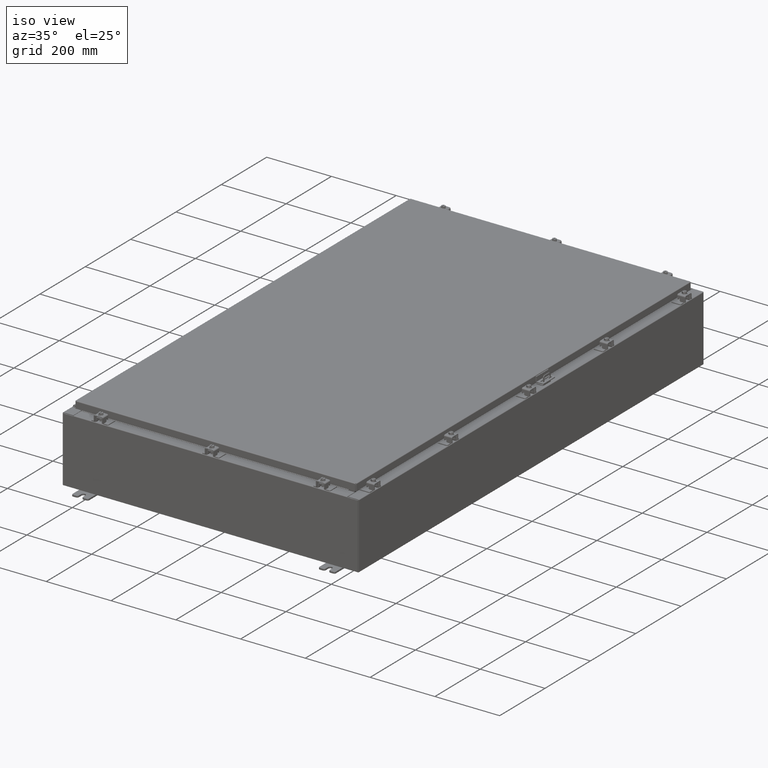
[diagram: clean part render]
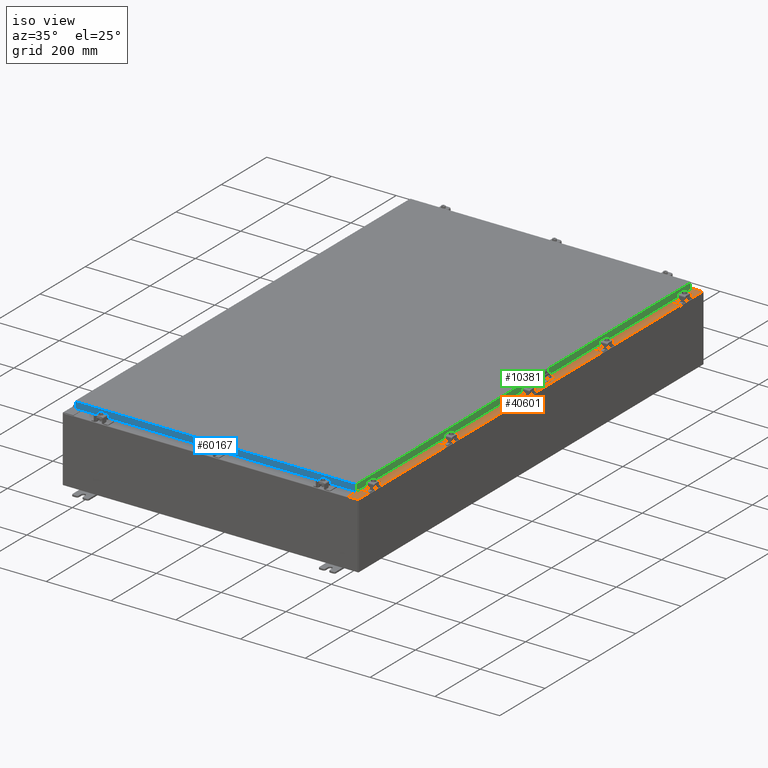
[diagram: same view with three faces highlighted in distinct colors, each labeled with its STEP entity id]
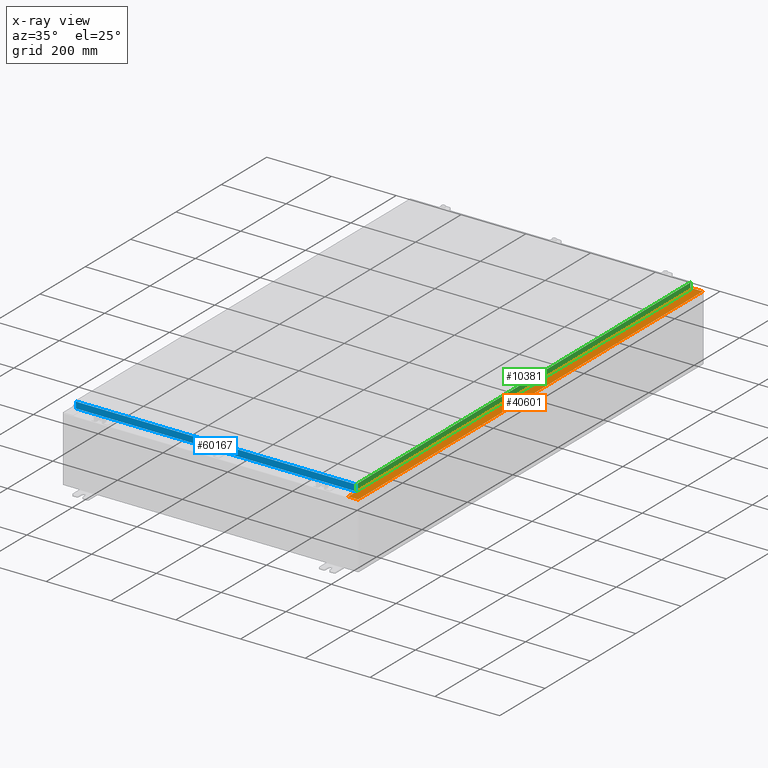
[diagram: x-ray of the same camera — body ghosted, the three highlighted faces saturated]
A machine part, iso view with three faces highlighted in distinct colors.
The next image is the same camera in x-ray (body ghosted, the three faces saturated) — at least one of them is partly hidden behind the body in this view.
Their STEP definitions:

[orange] entity #40601 — the highlighted planar face has unit normal (-0, -0, -1).
#8 = DIRECTION ( 'NONE',  ( 1.000000000000000000, 0.0000000000000000000, 0.0000000000000000000 ) ) ;
#205 = CIRCLE ( 'NONE', #45471, 0.01867499999999949400 ) ;
#698 = CARTESIAN_POINT ( 'NONE',  ( 16.71270000000003000, 28.59374999999999600, 7.925300000000008900 ) ) ;
#1022 = ORIENTED_EDGE ( 'NONE', *, *, #60252, .T. ) ;
#1280 = DIRECTION ( 'NONE',  ( 1.000000000000000000, 0.0000000000000000000, 0.0000000000000000000 ) ) ;
#2045 = FACE_OUTER_BOUND ( 'NONE', #28287, .T. ) ;
#2273 = VERTEX_POINT ( 'NONE', #31888 ) ;
#2908 = VERTEX_POINT ( 'NONE', #17089 ) ;
#3554 = VERTEX_POINT ( 'NONE', #7824 ) ;
#3846 = PLANE ( 'NONE',  #61789 ) ;
#4024 = LINE ( 'NONE', #21381, #42171 ) ;
#4918 = ORIENTED_EDGE ( 'NONE', *, *, #28018, .F. ) ;
#5058 = ORIENTED_EDGE ( 'NONE', *, *, #31599, .F. ) ;
#5275 = LINE ( 'NONE', #698, #33345 ) ;
#5553 = VECTOR ( 'NONE', #43955, 39.37007874015748100 ) ;
#7381 = DIRECTION ( 'NONE',  ( 0.0000000000000000000, -1.000000000000000000, 1.825778183452973300E-017 ) ) ;
#7601 = ORIENTED_EDGE ( 'NONE', *, *, #28686, .F. ) ;
#7617 = ORIENTED_EDGE ( 'NONE', *, *, #14953, .F. ) ;
#7824 = CARTESIAN_POINT ( 'NONE',  ( 16.75005000000003000, -28.63110000000000700, 7.925300000000008900 ) ) ;
#8627 = DIRECTION ( 'NONE',  ( -0.0000000000000000000, -1.000000000000000000, 1.825778183452973300E-017 ) ) ;
#8652 = ORIENTED_EDGE ( 'NONE', *, *, #23881, .T. ) ;
#8696 = CARTESIAN_POINT ( 'NONE',  ( 4.972393517345230000E-014, 1.446983984828268000E-016, 7.925300000000111900 ) ) ;
#8702 = VERTEX_POINT ( 'NONE', #49900 ) ;
#9046 = LINE ( 'NONE', #28613, #45546 ) ;
#10423 = CARTESIAN_POINT ( 'NONE',  ( 16.75005000000003000, -28.59375000000001100, 7.925300000000007100 ) ) ;
#10678 = CARTESIAN_POINT ( 'NONE',  ( 4.972393517345230000E-014, 29.92529999999999300, 7.925300000000111900 ) ) ;
#11227 = AXIS2_PLACEMENT_3D ( 'NONE', #60907, #31126, #1280 ) ;
#12529 = ORIENTED_EDGE ( 'NONE', *, *, #41228, .F. ) ;
#13176 = VECTOR ( 'NONE', #50948, 39.37007874015748100 ) ;
#13983 = DIRECTION ( 'NONE',  ( -6.241167087353086200E-015, -1.825778183452973300E-017, -1.000000000000000000 ) ) ;
#14953 = EDGE_CURVE ( 'NONE', #2273, #2908, #50729, .T. ) ;
#17089 = CARTESIAN_POINT ( 'NONE',  ( 16.71270000000003000, 28.59374999999999600, 7.925300000000008900 ) ) ;
#18063 = CARTESIAN_POINT ( 'NONE',  ( 16.69970000000002800, 1.446983984828268000E-016, 7.925300000000008900 ) ) ;
#18194 = EDGE_CURVE ( 'NONE', #42945, #54412, #42658, .T. ) ;
#21247 = CARTESIAN_POINT ( 'NONE',  ( 16.75005000000003000, 28.63109999999999600, 7.925300000000008900 ) ) ;
#21381 = CARTESIAN_POINT ( 'NONE',  ( 16.75005000000003000, -28.59375000000001100, 7.925300000000008900 ) ) ;
#22115 = VERTEX_POINT ( 'NONE', #22225 ) ;
#22117 = VERTEX_POINT ( 'NONE', #61956 ) ;
#22225 = CARTESIAN_POINT ( 'NONE',  ( 16.69970000000002800, 29.92529999999999300, 7.925300000000008900 ) ) ;
#22408 = CIRCLE ( 'NONE', #11227, 0.01867499999999949400 ) ;
#23765 = DIRECTION ( 'NONE',  ( -0.0000000000000000000, 1.000000000000000000, -0.0000000000000000000 ) ) ;
#23881 = EDGE_CURVE ( 'NONE', #22117, #54508, #61455, .T. ) ;
#23935 = ORIENTED_EDGE ( 'NONE', *, *, #18194, .F. ) ;
#25032 = LINE ( 'NONE', #10678, #26577 ) ;
#25068 = ORIENTED_EDGE ( 'NONE', *, *, #30925, .F. ) ;
#25469 = DIRECTION ( 'NONE',  ( -1.000000000000000000, 0.0000000000000000000, 6.241167087353087800E-015 ) ) ;
#26544 = VERTEX_POINT ( 'NONE', #10423 ) ;
#26577 = VECTOR ( 'NONE', #25469, 39.37007874015748100 ) ;
#28007 = DIRECTION ( 'NONE',  ( 0.0000000000000000000, -1.000000000000000000, 1.825778183452973300E-017 ) ) ;
#28018 = EDGE_CURVE ( 'NONE', #2908, #41037, #5275, .T. ) ;
#28287 = EDGE_LOOP ( 'NONE', ( #37211, #8652, #37706, #12529, #1022, #34252, #23935, #7601, #4918, #7617, #5058, #25068 ) ) ;
#28613 = CARTESIAN_POINT ( 'NONE',  ( 17.91230000000002300, -29.92530000000001100, 7.925300000000000900 ) ) ;
#28686 = EDGE_CURVE ( 'NONE', #41037, #42945, #22408, .T. ) ;
#29117 = LINE ( 'NONE', #31935, #42325 ) ;
#29858 = DIRECTION ( 'NONE',  ( 6.241167087353086200E-015, 1.825778183452973300E-017, 1.000000000000000000 ) ) ;
#30552 = DIRECTION ( 'NONE',  ( 1.000000000000000000, 0.0000000000000000000, 0.0000000000000000000 ) ) ;
#30925 = EDGE_CURVE ( 'NONE', #3554, #26544, #205, .T. ) ;
#31126 = DIRECTION ( 'NONE',  ( 6.241167087353086200E-015, 1.825778183452973300E-017, 1.000000000000000000 ) ) ;
#31599 = EDGE_CURVE ( 'NONE', #26544, #2273, #4024, .T. ) ;
#31724 = EDGE_CURVE ( 'NONE', #22115, #54412, #47566, .T. ) ;
#31888 = CARTESIAN_POINT ( 'NONE',  ( 16.71270000000003000, -28.59375000000001100, 7.925300000000008900 ) ) ;
#31935 = CARTESIAN_POINT ( 'NONE',  ( 4.972393517345230000E-014, -29.92530000000001100, 7.925300000000113700 ) ) ;
#33345 = VECTOR ( 'NONE', #30552, 39.37007874015748100 ) ;
#34252 = ORIENTED_EDGE ( 'NONE', *, *, #31724, .T. ) ;
#35001 = VECTOR ( 'NONE', #28007, 39.37007874015748100 ) ;
#36973 = EDGE_CURVE ( 'NONE', #22117, #3554, #58501, .T. ) ;
#37124 = CARTESIAN_POINT ( 'NONE',  ( 16.75005000000003000, 28.59374999999999600, 7.925300000000007100 ) ) ;
#37178 = CARTESIAN_POINT ( 'NONE',  ( 16.69970000000002800, 1.446983984828268000E-016, 7.925300000000008900 ) ) ;
#37211 = ORIENTED_EDGE ( 'NONE', *, *, #36973, .F. ) ;
#37706 = ORIENTED_EDGE ( 'NONE', *, *, #58589, .T. ) ;
#39096 = VECTOR ( 'NONE', #23765, 39.37007874015748100 ) ;
#40601 = ADVANCED_FACE ( 'NONE', ( #2045 ), #3846, .F. ) ;
#41037 = VERTEX_POINT ( 'NONE', #37124 ) ;
#41066 = DIRECTION ( 'NONE',  ( -1.000000000000000000, 0.0000000000000000000, 0.0000000000000000000 ) ) ;
#41228 = EDGE_CURVE ( 'NONE', #8702, #53351, #9046, .T. ) ;
#42171 = VECTOR ( 'NONE', #41066, 39.37007874015748100 ) ;
#42325 = VECTOR ( 'NONE', #46675, 39.37007874015748100 ) ;
#42658 = LINE ( 'NONE', #21247, #13176 ) ;
#42945 = VERTEX_POINT ( 'NONE', #61400 ) ;
#43955 = DIRECTION ( 'NONE',  ( 1.000000000000000000, 0.0000000000000000000, 0.0000000000000000000 ) ) ;
#45471 = AXIS2_PLACEMENT_3D ( 'NONE', #59636, #29858, #8 ) ;
#45546 = VECTOR ( 'NONE', #8627, 39.37007874015748100 ) ;
#46675 = DIRECTION ( 'NONE',  ( 1.000000000000000000, 0.0000000000000000000, -6.241167087353087800E-015 ) ) ;
#47566 = LINE ( 'NONE', #37178, #49145 ) ;
#48654 = DIRECTION ( 'NONE',  ( -1.000000000000000000, 0.0000000000000000000, 6.241167087353086200E-015 ) ) ;
#49145 = VECTOR ( 'NONE', #7381, 39.37007874015748100 ) ;
#49900 = CARTESIAN_POINT ( 'NONE',  ( 17.91230000000002300, 29.92529999999999300, 7.925300000000000000 ) ) ;
#50729 = LINE ( 'NONE', #53473, #39096 ) ;
#50948 = DIRECTION ( 'NONE',  ( -1.000000000000000000, 0.0000000000000000000, 0.0000000000000000000 ) ) ;
#53351 = VERTEX_POINT ( 'NONE', #64321 ) ;
#53473 = CARTESIAN_POINT ( 'NONE',  ( 16.71270000000003000, -28.59375000000001400, 7.925300000000008900 ) ) ;
#53733 = CARTESIAN_POINT ( 'NONE',  ( 16.69970000000002800, -28.63110000000000700, 7.925300000000008900 ) ) ;
#54381 = CARTESIAN_POINT ( 'NONE',  ( 16.69970000000002800, 28.63109999999998900, 7.925300000000008900 ) ) ;
#54412 = VERTEX_POINT ( 'NONE', #54381 ) ;
#54508 = VERTEX_POINT ( 'NONE', #60040 ) ;
#58501 = LINE ( 'NONE', #53733, #5553 ) ;
#58589 = EDGE_CURVE ( 'NONE', #54508, #53351, #29117, .T. ) ;
#59636 = CARTESIAN_POINT ( 'NONE',  ( 16.75005000000003000, -28.61242500000000900, 7.925300000000008900 ) ) ;
#60040 = CARTESIAN_POINT ( 'NONE',  ( 16.69970000000002800, -29.92530000000001100, 7.925300000000009800 ) ) ;
#60252 = EDGE_CURVE ( 'NONE', #8702, #22115, #25032, .T. ) ;
#60907 = CARTESIAN_POINT ( 'NONE',  ( 16.75005000000003000, 28.61242499999999500, 7.925300000000008900 ) ) ;
#61400 = CARTESIAN_POINT ( 'NONE',  ( 16.75005000000003000, 28.63109999999999600, 7.925300000000007100 ) ) ;
#61455 = LINE ( 'NONE', #18063, #35001 ) ;
#61789 = AXIS2_PLACEMENT_3D ( 'NONE', #8696, #13983, #48654 ) ;
#61956 = CARTESIAN_POINT ( 'NONE',  ( 16.69970000000002800, -28.63110000000000700, 7.925300000000008900 ) ) ;
#64321 = CARTESIAN_POINT ( 'NONE',  ( 17.91230000000002300, -29.92530000000001100, 7.925300000000000900 ) ) ;

[blue] entity #60167 — the highlighted planar face has unit normal (-0, 1, -0).
#2475 = ORIENTED_EDGE ( 'NONE', *, *, #18585, .F. ) ;
#3397 = VERTEX_POINT ( 'NONE', #31338 ) ;
#3666 = EDGE_CURVE ( 'NONE', #3397, #50559, #53110, .T. ) ;
#9169 = CARTESIAN_POINT ( 'NONE',  ( -16.98915786437626700, -29.09400000000000500, -0.8499999999999955400 ) ) ;
#9710 = CARTESIAN_POINT ( 'NONE',  ( 16.23915786437626400, -29.09400000000000800, -0.8499999999999999800 ) ) ;
#10014 = DIRECTION ( 'NONE',  ( 0.0000000000000000000, 5.637761885544721100E-015, 1.000000000000000000 ) ) ;
#10387 = CARTESIAN_POINT ( 'NONE',  ( 16.23915786437626400, -29.09400000000000800, -0.8499999999999999800 ) ) ;
#10507 = VERTEX_POINT ( 'NONE', #10387 ) ;
#14559 = CARTESIAN_POINT ( 'NONE',  ( -16.23915786437626000, -29.09400000000000800, -0.8499999999999999800 ) ) ;
#16233 = LINE ( 'NONE', #59175, #42597 ) ;
#17965 = VERTEX_POINT ( 'NONE', #14559 ) ;
#17994 = EDGE_CURVE ( 'NONE', #10507, #17965, #50445, .T. ) ;
#18585 = EDGE_CURVE ( 'NONE', #50559, #10507, #16233, .T. ) ;
#18767 = CARTESIAN_POINT ( 'NONE',  ( 16.98915786437627100, -29.09400000000000100, -0.07469999999999907300 ) ) ;
#20523 = DIRECTION ( 'NONE',  ( 1.000000000000000000, 6.989207801985715800E-031, -3.922586267643549700E-045 ) ) ;
#20934 = AXIS2_PLACEMENT_3D ( 'NONE', #29774, #39776, #10014 ) ;
#22214 = EDGE_LOOP ( 'NONE', ( #23244, #62394, #24899, #26367, #2475, #58459 ) ) ;
#22616 = VECTOR ( 'NONE', #26676, 39.37007874015748100 ) ;
#23244 = ORIENTED_EDGE ( 'NONE', *, *, #57616, .F. ) ;
#23343 = VERTEX_POINT ( 'NONE', #9169 ) ;
#24152 = LINE ( 'NONE', #56420, #22616 ) ;
#24899 = ORIENTED_EDGE ( 'NONE', *, *, #41908, .F. ) ;
#26367 = ORIENTED_EDGE ( 'NONE', *, *, #17994, .F. ) ;
#26676 = DIRECTION ( 'NONE',  ( 0.0000000000000000000, -5.637761885544721800E-015, -1.000000000000000000 ) ) ;
#27635 = CARTESIAN_POINT ( 'NONE',  ( -16.98915786437626700, -29.09400000000000100, -0.08769999999999589200 ) ) ;
#29394 = DIRECTION ( 'NONE',  ( -1.000000000000000000, -0.0000000000000000000, 1.239713195391617100E-016 ) ) ;
#29608 = CARTESIAN_POINT ( 'NONE',  ( 16.98915786437627100, -29.09400000000000500, -0.8499999999999999800 ) ) ;
#29618 = CARTESIAN_POINT ( 'NONE',  ( 17.07800000000000300, -29.09400000000000500, -0.8499999999999999800 ) ) ;
#29774 = CARTESIAN_POINT ( 'NONE',  ( 0.0000000000000000000, -29.09400000000000100, 1.639108796198558000E-013 ) ) ;
#30249 = CARTESIAN_POINT ( 'NONE',  ( 17.07800000000000300, -29.09400000000000100, -0.08769999999999589200 ) ) ;
#31338 = CARTESIAN_POINT ( 'NONE',  ( 16.98915786437627100, -29.09400000000000100, -0.08769999999999589200 ) ) ;
#32380 = VECTOR ( 'NONE', #20523, 39.37007874015748100 ) ;
#36165 = VECTOR ( 'NONE', #59397, 39.37007874015748100 ) ;
#39481 = DIRECTION ( 'NONE',  ( -1.000000000000000000, 0.0000000000000000000, 0.0000000000000000000 ) ) ;
#39776 = DIRECTION ( 'NONE',  ( -6.989207801985715000E-031, 1.000000000000000000, -5.637761885544721100E-015 ) ) ;
#41444 = VECTOR ( 'NONE', #53456, 39.37007874015748100 ) ;
#41908 = EDGE_CURVE ( 'NONE', #17965, #23343, #47783, .T. ) ;
#42597 = VECTOR ( 'NONE', #29394, 39.37007874015748100 ) ;
#44451 = FACE_OUTER_BOUND ( 'NONE', #22214, .T. ) ;
#44681 = EDGE_CURVE ( 'NONE', #50928, #23343, #24152, .T. ) ;
#47783 = LINE ( 'NONE', #29618, #36165 ) ;
#49554 = PLANE ( 'NONE',  #20934 ) ;
#50445 = LINE ( 'NONE', #9710, #52002 ) ;
#50559 = VERTEX_POINT ( 'NONE', #29608 ) ;
#50928 = VERTEX_POINT ( 'NONE', #27635 ) ;
#52002 = VECTOR ( 'NONE', #39481, 39.37007874015748100 ) ;
#53110 = LINE ( 'NONE', #18767, #41444 ) ;
#53456 = DIRECTION ( 'NONE',  ( -0.0000000000000000000, -5.637761885544721800E-015, -1.000000000000000000 ) ) ;
#56420 = CARTESIAN_POINT ( 'NONE',  ( -16.98915786437626700, -29.09400000000000100, 1.639108796198558000E-013 ) ) ;
#57245 = LINE ( 'NONE', #30249, #32380 ) ;
#57616 = EDGE_CURVE ( 'NONE', #50928, #3397, #57245, .T. ) ;
#58459 = ORIENTED_EDGE ( 'NONE', *, *, #3666, .F. ) ;
#59175 = CARTESIAN_POINT ( 'NONE',  ( 17.07800000000000300, -29.09400000000000500, -0.8499999999999999800 ) ) ;
#59397 = DIRECTION ( 'NONE',  ( -1.000000000000000000, -0.0000000000000000000, 1.239713195391617100E-016 ) ) ;
#60167 = ADVANCED_FACE ( 'NONE', ( #44451 ), #49554, .F. ) ;
#62394 = ORIENTED_EDGE ( 'NONE', *, *, #44681, .T. ) ;

[green] entity #10381 — the highlighted planar face has unit normal (1, 0, 0).
#751 = EDGE_CURVE ( 'NONE', #19264, #33287, #11556, .T. ) ;
#1914 = EDGE_CURVE ( 'NONE', #26106, #47655, #23855, .T. ) ;
#2178 = AXIS2_PLACEMENT_3D ( 'NONE', #14370, #29294, #64081 ) ;
#3310 = EDGE_CURVE ( 'NONE', #63504, #33287, #51613, .T. ) ;
#9019 = LINE ( 'NONE', #42594, #60339 ) ;
#9259 = DIRECTION ( 'NONE',  ( 0.0000000000000000000, -1.000000000000000000, 0.0000000000000000000 ) ) ;
#9692 = LINE ( 'NONE', #29081, #34583 ) ;
#10274 = CARTESIAN_POINT ( 'NONE',  ( 17.07800000000000300, -29.00515786437626500, -0.07470000000000015500 ) ) ;
#10381 = ADVANCED_FACE ( 'NONE', ( #36924 ), #19372, .T. ) ;
#10609 = VECTOR ( 'NONE', #48841, 39.37007874015748100 ) ;
#11204 = EDGE_LOOP ( 'NONE', ( #32644, #16952, #42747, #17672, #59806, #47716 ) ) ;
#11556 = LINE ( 'NONE', #21224, #23247 ) ;
#14370 = CARTESIAN_POINT ( 'NONE',  ( 17.07800000000000300, 0.0000000000000000000, 4.808052468849102900E-014 ) ) ;
#16952 = ORIENTED_EDGE ( 'NONE', *, *, #20645, .F. ) ;
#17672 = ORIENTED_EDGE ( 'NONE', *, *, #1914, .F. ) ;
#19264 = VERTEX_POINT ( 'NONE', #24997 ) ;
#19372 = PLANE ( 'NONE',  #2178 ) ;
#20295 = CARTESIAN_POINT ( 'NONE',  ( 17.07800000000000700, 29.00515786437627200, -0.8499999999999999800 ) ) ;
#20332 = DIRECTION ( 'NONE',  ( -2.818880942772360100E-015, -6.982962677686265900E-015, 1.000000000000000000 ) ) ;
#20645 = EDGE_CURVE ( 'NONE', #53568, #63504, #9692, .T. ) ;
#20906 = LINE ( 'NONE', #54235, #34099 ) ;
#21224 = CARTESIAN_POINT ( 'NONE',  ( 17.07800000000000300, 0.0000000000000000000, -0.08770000000000026400 ) ) ;
#23247 = VECTOR ( 'NONE', #36174, 39.37007874015748100 ) ;
#23680 = VECTOR ( 'NONE', #20332, 39.37007874015748100 ) ;
#23855 = LINE ( 'NONE', #63670, #10609 ) ;
#24997 = CARTESIAN_POINT ( 'NONE',  ( 17.07800000000000300, 29.00515786437626500, -0.08770000000000026400 ) ) ;
#26106 = VERTEX_POINT ( 'NONE', #20295 ) ;
#27152 = CARTESIAN_POINT ( 'NONE',  ( 17.07799999999999600, -28.25515786437625800, -0.8500000000000020900 ) ) ;
#29081 = CARTESIAN_POINT ( 'NONE',  ( 17.07800000000000700, -29.09400000000000100, -0.8499999999999999800 ) ) ;
#29294 = DIRECTION ( 'NONE',  ( 1.000000000000000000, 0.0000000000000000000, 2.818880942772360100E-015 ) ) ;
#32644 = ORIENTED_EDGE ( 'NONE', *, *, #3310, .F. ) ;
#33287 = VERTEX_POINT ( 'NONE', #44357 ) ;
#33321 = CARTESIAN_POINT ( 'NONE',  ( 17.07800000000000700, -29.00515786437626200, -0.8499999999999999800 ) ) ;
#33909 = CARTESIAN_POINT ( 'NONE',  ( 17.07799999999999600, 28.25515786437626200, -0.8500000000000020900 ) ) ;
#34099 = VECTOR ( 'NONE', #9259, 39.37007874015748100 ) ;
#34103 = DIRECTION ( 'NONE',  ( 0.0000000000000000000, -1.000000000000000000, 0.0000000000000000000 ) ) ;
#34583 = VECTOR ( 'NONE', #34103, 39.37007874015748100 ) ;
#36174 = DIRECTION ( 'NONE',  ( 0.0000000000000000000, -1.000000000000000000, 0.0000000000000000000 ) ) ;
#36924 = FACE_OUTER_BOUND ( 'NONE', #11204, .T. ) ;
#42594 = CARTESIAN_POINT ( 'NONE',  ( 17.07800000000000300, 29.00515786437626500, 2.513300154171122100E-013 ) ) ;
#42747 = ORIENTED_EDGE ( 'NONE', *, *, #51757, .F. ) ;
#44357 = CARTESIAN_POINT ( 'NONE',  ( 17.07800000000000300, -29.00515786437626500, -0.08770000000000026400 ) ) ;
#47554 = DIRECTION ( 'NONE',  ( -2.818880942772360100E-015, -6.982962677686265900E-015, 1.000000000000000000 ) ) ;
#47655 = VERTEX_POINT ( 'NONE', #33909 ) ;
#47716 = ORIENTED_EDGE ( 'NONE', *, *, #751, .T. ) ;
#48841 = DIRECTION ( 'NONE',  ( 0.0000000000000000000, -1.000000000000000000, 0.0000000000000000000 ) ) ;
#51613 = LINE ( 'NONE', #10274, #23680 ) ;
#51757 = EDGE_CURVE ( 'NONE', #47655, #53568, #20906, .T. ) ;
#53117 = EDGE_CURVE ( 'NONE', #26106, #19264, #9019, .T. ) ;
#53568 = VERTEX_POINT ( 'NONE', #27152 ) ;
#54235 = CARTESIAN_POINT ( 'NONE',  ( 17.07799999999999600, 28.25515786437627600, -0.8500000000000020900 ) ) ;
#59806 = ORIENTED_EDGE ( 'NONE', *, *, #53117, .T. ) ;
#60339 = VECTOR ( 'NONE', #47554, 39.37007874015748100 ) ;
#63504 = VERTEX_POINT ( 'NONE', #33321 ) ;
#63670 = CARTESIAN_POINT ( 'NONE',  ( 17.07800000000000700, -29.09400000000000100, -0.8499999999999999800 ) ) ;
#64081 = DIRECTION ( 'NONE',  ( 2.818880942772360100E-015, 0.0000000000000000000, -1.000000000000000000 ) ) ;